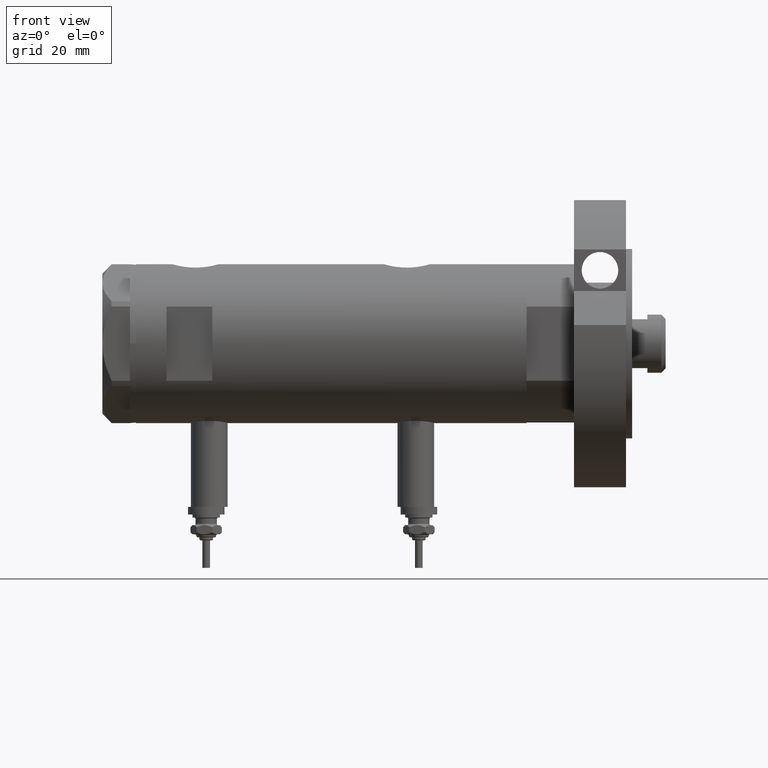
[diagram: clean part render]
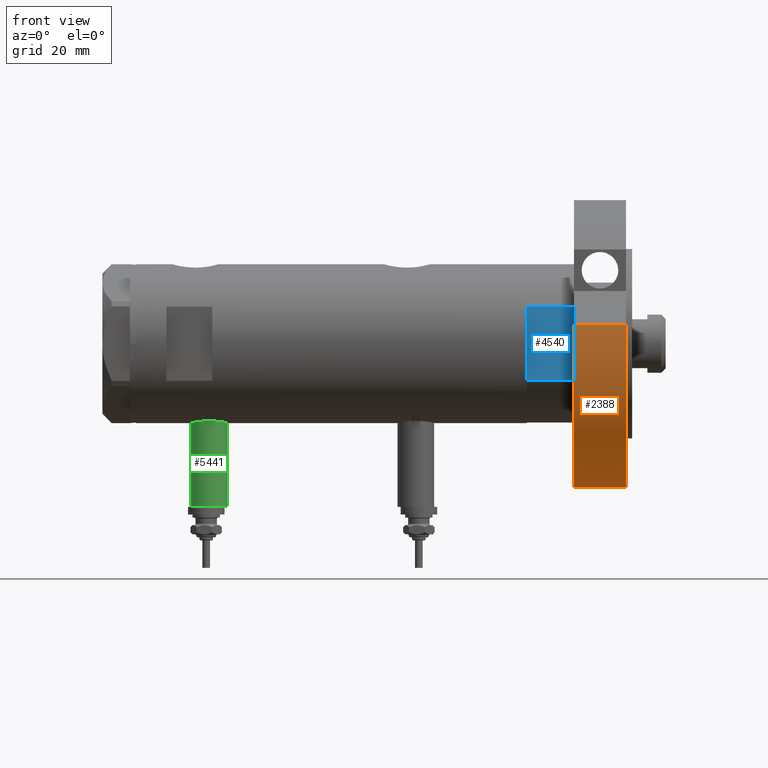
[diagram: same view with three faces highlighted in distinct colors, each labeled with its STEP entity id]
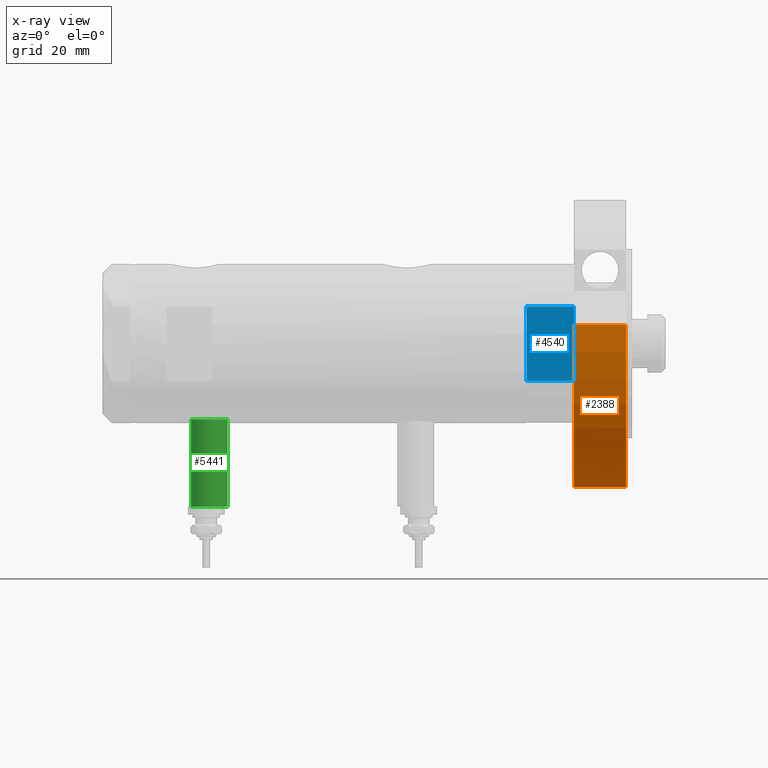
[diagram: x-ray of the same camera — body ghosted, the three highlighted faces saturated]
A machine part, front view with three faces highlighted in distinct colors.
The next image is the same camera in x-ray (body ghosted, the three faces saturated) — at least one of them is partly hidden behind the body in this view.
Their STEP definitions:

[orange] entity #2388 — the highlighted cylindrical surface (partial cylindrical patch) has radius 47 mm, axis along (-1, -0, 0).
#493 = FACE_OUTER_BOUND ( 'NONE', #6662, .T. ) ;
#524 = CARTESIAN_POINT ( 'NONE',  ( -46.99999999999999289, 0.000000000000000000, 0.000000000000000000 ) ) ;
#545 = CARTESIAN_POINT ( 'NONE',  ( 0.000000000000000000, 0.000000000000000000, 0.000000000000000000 ) ) ;
#597 = DIRECTION ( 'NONE',  ( -1.000000000000000000, 0.000000000000000000, 0.000000000000000000 ) ) ;
#795 = DIRECTION ( 'NONE',  ( -0.000000000000000000, -0.000000000000000000, -1.000000000000000000 ) ) ;
#905 = EDGE_CURVE ( 'NONE', #6294, #4431, #4041, .T. ) ;
#1226 = CARTESIAN_POINT ( 'NONE',  ( 6.092310621118299352, 46.60347359688769586, 0.000000000000000000 ) ) ;
#1311 = EDGE_CURVE ( 'NONE', #6936, #6294, #7519, .T. ) ;
#1650 = LINE ( 'NONE', #6931, #5789 ) ;
#2324 = VERTEX_POINT ( 'NONE', #524 ) ;
#2388 = ADVANCED_FACE ( 'NONE', ( #493 ), #7932, .T. ) ;
#2478 = CARTESIAN_POINT ( 'NONE',  ( 0.000000000000000000, 0.000000000000000000, 17.00000000000000000 ) ) ;
#2565 = CARTESIAN_POINT ( 'NONE',  ( -46.99999999999999289, 0.000000000000000000, 17.00000000000000000 ) ) ;
#3161 = AXIS2_PLACEMENT_3D ( 'NONE', #4252, #6722, #597 ) ;
#3179 = CIRCLE ( 'NONE', #7686, 46.99999999999999289 ) ;
#3226 = DIRECTION ( 'NONE',  ( 1.000000000000000000, 0.000000000000000000, 0.000000000000000000 ) ) ;
#3299 = ORIENTED_EDGE ( 'NONE', *, *, #4378, .F. ) ;
#3562 = EDGE_CURVE ( 'NONE', #6936, #2324, #3179, .T. ) ;
#3632 = DIRECTION ( 'NONE',  ( 1.000000000000000000, 0.000000000000000000, 0.000000000000000000 ) ) ;
#3647 = AXIS2_PLACEMENT_3D ( 'NONE', #2478, #7407, #3226 ) ;
#3654 = ORIENTED_EDGE ( 'NONE', *, *, #1311, .F. ) ;
#3679 = DIRECTION ( 'NONE',  ( 0.000000000000000000, 0.000000000000000000, 1.000000000000000000 ) ) ;
#3688 = DIRECTION ( 'NONE',  ( -0.000000000000000000, -0.000000000000000000, 1.000000000000000000 ) ) ;
#4041 = CIRCLE ( 'NONE', #3647, 46.99999999999999289 ) ;
#4252 = CARTESIAN_POINT ( 'NONE',  ( 0.000000000000000000, 0.000000000000000000, 17.00000000000000000 ) ) ;
#4378 = EDGE_CURVE ( 'NONE', #4431, #2324, #1650, .T. ) ;
#4431 = VERTEX_POINT ( 'NONE', #2565 ) ;
#4887 = ORIENTED_EDGE ( 'NONE', *, *, #3562, .T. ) ;
#5343 = VECTOR ( 'NONE', #3688, 1000.000000000000000 ) ;
#5789 = VECTOR ( 'NONE', #795, 1000.000000000000000 ) ;
#6186 = CARTESIAN_POINT ( 'NONE',  ( 6.092310621118299352, 46.60347359688769586, 0.000000000000000000 ) ) ;
#6294 = VERTEX_POINT ( 'NONE', #7563 ) ;
#6662 = EDGE_LOOP ( 'NONE', ( #3299, #7826, #3654, #4887 ) ) ;
#6722 = DIRECTION ( 'NONE',  ( -0.000000000000000000, -0.000000000000000000, -1.000000000000000000 ) ) ;
#6931 = CARTESIAN_POINT ( 'NONE',  ( -46.99999999999999289, 0.000000000000000000, 17.00000000000000000 ) ) ;
#6936 = VERTEX_POINT ( 'NONE', #1226 ) ;
#7407 = DIRECTION ( 'NONE',  ( 0.000000000000000000, 0.000000000000000000, 1.000000000000000000 ) ) ;
#7519 = LINE ( 'NONE', #6186, #5343 ) ;
#7563 = CARTESIAN_POINT ( 'NONE',  ( 6.092310621118299352, 46.60347359688769586, 17.00000000000000000 ) ) ;
#7686 = AXIS2_PLACEMENT_3D ( 'NONE', #545, #3679, #3632 ) ;
#7826 = ORIENTED_EDGE ( 'NONE', *, *, #905, .F. ) ;
#7932 = CYLINDRICAL_SURFACE ( 'NONE', #3161, 46.99999999999999289 ) ;

[blue] entity #4540 — the highlighted planar face has unit normal (-0, 1, 0).
#110 = EDGE_CURVE ( 'NONE', #2978, #643, #4526, .T. ) ;
#252 = DIRECTION ( 'NONE',  ( -0.000000000000000000, 1.000000000000000000, 0.000000000000000000 ) ) ;
#301 = EDGE_CURVE ( 'NONE', #5660, #2978, #2552, .T. ) ;
#643 = VERTEX_POINT ( 'NONE', #6699 ) ;
#751 = CARTESIAN_POINT ( 'NONE',  ( -12.12435565298215145, -22.99999999999999645, 0.000000000000000000 ) ) ;
#822 = VECTOR ( 'NONE', #6410, 1000.000000000000000 ) ;
#834 = FACE_OUTER_BOUND ( 'NONE', #5203, .T. ) ;
#909 = LINE ( 'NONE', #5836, #2776 ) ;
#929 = ORIENTED_EDGE ( 'NONE', *, *, #110, .F. ) ;
#1208 = VECTOR ( 'NONE', #5586, 1000.000000000000000 ) ;
#1590 = CARTESIAN_POINT ( 'NONE',  ( 12.12435565298215323, -22.99999999999999645, 0.000000000000000000 ) ) ;
#1806 = CARTESIAN_POINT ( 'NONE',  ( -12.12435565298215145, -22.99999999999999645, 0.000000000000000000 ) ) ;
#1961 = CARTESIAN_POINT ( 'NONE',  ( 12.12435565298215323, -22.99999999999999645, 15.50000000000000000 ) ) ;
#2260 = CARTESIAN_POINT ( 'NONE',  ( 12.12435565298215323, -22.99999999999999645, 0.000000000000000000 ) ) ;
#2306 = VERTEX_POINT ( 'NONE', #1961 ) ;
#2552 = LINE ( 'NONE', #1806, #1208 ) ;
#2700 = DIRECTION ( 'NONE',  ( 0.000000000000000000, -0.000000000000000000, 1.000000000000000000 ) ) ;
#2759 = DIRECTION ( 'NONE',  ( -1.000000000000000000, -0.000000000000000000, -0.000000000000000000 ) ) ;
#2776 = VECTOR ( 'NONE', #2759, 1000.000000000000000 ) ;
#2978 = VERTEX_POINT ( 'NONE', #3818 ) ;
#3302 = PLANE ( 'NONE',  #4028 ) ;
#3818 = CARTESIAN_POINT ( 'NONE',  ( -12.12435565298215501, -22.99999999999999645, 0.000000000000000000 ) ) ;
#4028 = AXIS2_PLACEMENT_3D ( 'NONE', #5775, #252, #2700 ) ;
#4526 = LINE ( 'NONE', #751, #7268 ) ;
#4540 = ADVANCED_FACE ( 'NONE', ( #834 ), #3302, .F. ) ;
#4666 = ORIENTED_EDGE ( 'NONE', *, *, #301, .F. ) ;
#4830 = ORIENTED_EDGE ( 'NONE', *, *, #5954, .T. ) ;
#5203 = EDGE_LOOP ( 'NONE', ( #7538, #929, #4666, #4830 ) ) ;
#5586 = DIRECTION ( 'NONE',  ( -1.000000000000000000, -0.000000000000000000, -0.000000000000000000 ) ) ;
#5660 = VERTEX_POINT ( 'NONE', #2260 ) ;
#5775 = CARTESIAN_POINT ( 'NONE',  ( -12.12435565298215145, -22.99999999999999645, 0.000000000000000000 ) ) ;
#5836 = CARTESIAN_POINT ( 'NONE',  ( -12.12435565298215145, -22.99999999999999645, 15.50000000000000000 ) ) ;
#5849 = LINE ( 'NONE', #1590, #822 ) ;
#5954 = EDGE_CURVE ( 'NONE', #5660, #2306, #5849, .T. ) ;
#6410 = DIRECTION ( 'NONE',  ( -0.000000000000000000, -0.000000000000000000, 1.000000000000000000 ) ) ;
#6699 = CARTESIAN_POINT ( 'NONE',  ( -12.12435565298215323, -22.99999999999999645, 15.50000000000000000 ) ) ;
#7268 = VECTOR ( 'NONE', #7510, 1000.000000000000000 ) ;
#7510 = DIRECTION ( 'NONE',  ( -0.000000000000000000, -0.000000000000000000, 1.000000000000000000 ) ) ;
#7538 = ORIENTED_EDGE ( 'NONE', *, *, #7574, .T. ) ;
#7574 = EDGE_CURVE ( 'NONE', #2306, #643, #909, .T. ) ;

[green] entity #5441 — the highlighted cylindrical surface (edge-blend (fillet) strip) has radius 6 mm, axis along (0, 0, 1).
#23 = CYLINDRICAL_SURFACE ( 'NONE', #5352, 5.999999999999998224 ) ;
#61 = DIRECTION ( 'NONE',  ( 0.000000000000000000, 0.000000000000000000, 1.000000000000000000 ) ) ;
#620 = ORIENTED_EDGE ( 'NONE', *, *, #6087, .T. ) ;
#852 = VERTEX_POINT ( 'NONE', #6938 ) ;
#958 = CIRCLE ( 'NONE', #1965, 5.999999999999998224 ) ;
#1212 = EDGE_CURVE ( 'NONE', #2857, #852, #1334, .T. ) ;
#1334 = CIRCLE ( 'NONE', #6753, 5.999999999999998224 ) ;
#1558 = EDGE_CURVE ( 'NONE', #6247, #852, #1775, .T. ) ;
#1775 = LINE ( 'NONE', #4212, #3784 ) ;
#1965 = AXIS2_PLACEMENT_3D ( 'NONE', #4850, #5584, #61 ) ;
#2300 = ORIENTED_EDGE ( 'NONE', *, *, #5411, .F. ) ;
#2387 = ORIENTED_EDGE ( 'NONE', *, *, #1558, .F. ) ;
#2457 = DIRECTION ( 'NONE',  ( 0.000000000000000000, 0.000000000000000000, -1.000000000000000000 ) ) ;
#2641 = VECTOR ( 'NONE', #4405, 1000.000000000000000 ) ;
#2643 = CARTESIAN_POINT ( 'NONE',  ( -53.40000000000000568, 7.347880794884108889E-16, 45.95000000000000284 ) ) ;
#2857 = VERTEX_POINT ( 'NONE', #7889 ) ;
#3215 = DIRECTION ( 'NONE',  ( -1.000000000000000000, 0.000000000000000000, 0.000000000000000000 ) ) ;
#3762 = CARTESIAN_POINT ( 'NONE',  ( -24.80000000000000426, 0.000000000000000000, 39.95000000000000284 ) ) ;
#3784 = VECTOR ( 'NONE', #6679, 1000.000000000000000 ) ;
#4054 = CARTESIAN_POINT ( 'NONE',  ( -53.40000000000000568, 0.000000000000000000, 33.95000000000000995 ) ) ;
#4212 = CARTESIAN_POINT ( 'NONE',  ( -53.40000000000000568, 7.347880794884112834E-16, 45.95000000000000284 ) ) ;
#4280 = CARTESIAN_POINT ( 'NONE',  ( -53.40000000000000568, 0.000000000000000000, 33.95000000000000995 ) ) ;
#4405 = DIRECTION ( 'NONE',  ( 1.000000000000000000, -0.000000000000000000, -0.000000000000000000 ) ) ;
#4409 = DIRECTION ( 'NONE',  ( 0.000000000000000000, 0.000000000000000000, 1.000000000000000000 ) ) ;
#4850 = CARTESIAN_POINT ( 'NONE',  ( -53.40000000000000568, 0.000000000000000000, 39.95000000000000284 ) ) ;
#4874 = EDGE_LOOP ( 'NONE', ( #2387, #2300, #620, #7170 ) ) ;
#5352 = AXIS2_PLACEMENT_3D ( 'NONE', #5513, #7312, #2457 ) ;
#5411 = EDGE_CURVE ( 'NONE', #7178, #6247, #958, .T. ) ;
#5441 = ADVANCED_FACE ( 'NONE', ( #5546 ), #23, .T. ) ;
#5513 = CARTESIAN_POINT ( 'NONE',  ( -53.40000000000000568, 0.000000000000000000, 39.95000000000000284 ) ) ;
#5546 = FACE_OUTER_BOUND ( 'NONE', #4874, .T. ) ;
#5554 = LINE ( 'NONE', #4280, #2641 ) ;
#5584 = DIRECTION ( 'NONE',  ( -1.000000000000000000, 0.000000000000000000, 0.000000000000000000 ) ) ;
#6087 = EDGE_CURVE ( 'NONE', #7178, #2857, #5554, .T. ) ;
#6247 = VERTEX_POINT ( 'NONE', #2643 ) ;
#6679 = DIRECTION ( 'NONE',  ( 1.000000000000000000, -0.000000000000000000, -0.000000000000000000 ) ) ;
#6753 = AXIS2_PLACEMENT_3D ( 'NONE', #3762, #3215, #4409 ) ;
#6938 = CARTESIAN_POINT ( 'NONE',  ( -24.80000000000000426, 7.347880794884108889E-16, 45.95000000000000284 ) ) ;
#7170 = ORIENTED_EDGE ( 'NONE', *, *, #1212, .T. ) ;
#7178 = VERTEX_POINT ( 'NONE', #4054 ) ;
#7312 = DIRECTION ( 'NONE',  ( 1.000000000000000000, -0.000000000000000000, -0.000000000000000000 ) ) ;
#7889 = CARTESIAN_POINT ( 'NONE',  ( -24.80000000000000426, 0.000000000000000000, 33.95000000000000995 ) ) ;